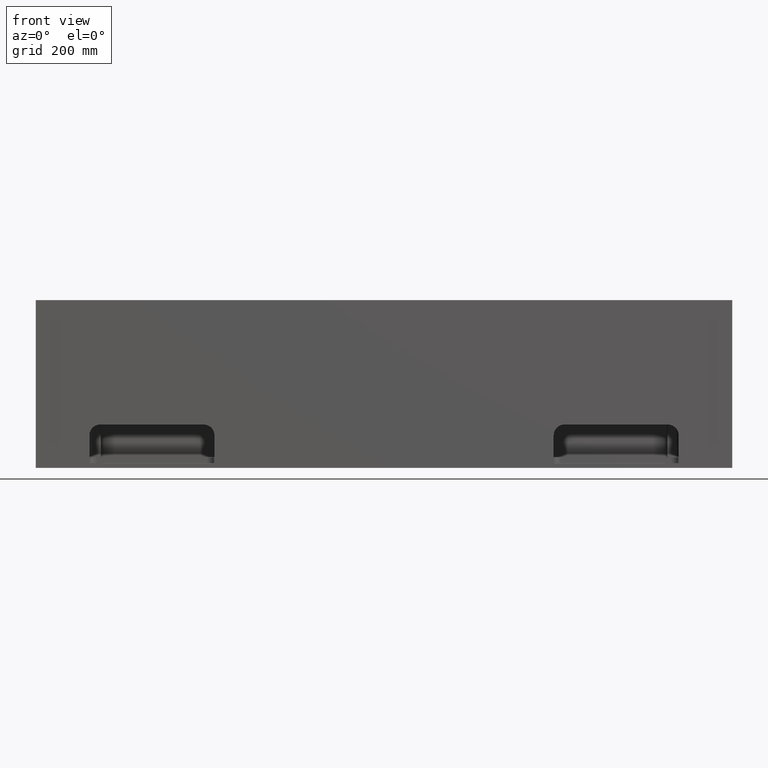
[diagram: clean part render]
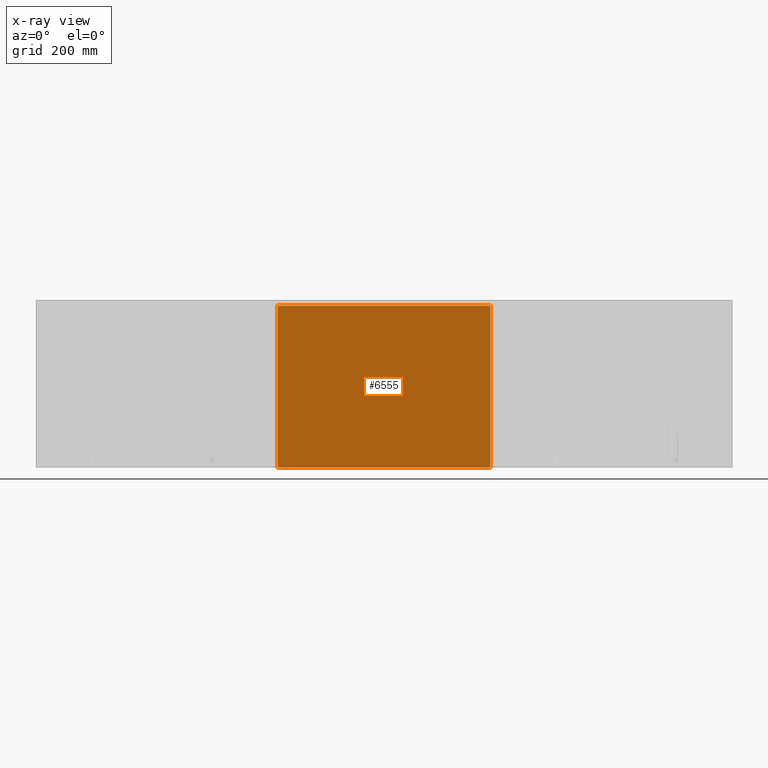
[diagram: x-ray — body ghosted, one internal face saturated and labeled with its STEP entity id]
A machine part, front view, then the same camera in x-ray: the body is ghosted and one INTERNAL B-rep face — a face not visible from any outside direction — is saturated and labeled: STEP entity #6555.
In plain terms, the highlighted planar face has unit normal (0, -1, 0).
Its self-contained STEP definition (entity closure, byte-faithful):
#1891 = EDGE_CURVE ( 'NONE', #34370, #22526, #28741, .T. ) ;
#4047 = CARTESIAN_POINT ( 'NONE',  ( 1273.000000000000227, 292.0000000000000000, -16.00000000000001421 ) ) ;
#4700 = EDGE_CURVE ( 'NONE', #17071, #23354, #8089, .T. ) ;
#5017 = CARTESIAN_POINT ( 'NONE',  ( 0.0000000000000000000, 292.0000000000000000, 0.0000000000000000000 ) ) ;
#5832 = ORIENTED_EDGE ( 'NONE', *, *, #18878, .T. ) ;
#6544 = LINE ( 'NONE', #17543, #22820 ) ;
#6555 = ADVANCED_FACE ( 'NONE', ( #18742 ), #29696, .F. ) ;
#6665 = AXIS2_PLACEMENT_3D ( 'NONE', #5017, #16034, #27013 ) ;
#7788 = CARTESIAN_POINT ( 'NONE',  ( 676.9999999999997726, 292.0000000000000000, -16.00000000000001421 ) ) ;
#8089 = LINE ( 'NONE', #19087, #24285 ) ;
#9109 = CARTESIAN_POINT ( 'NONE',  ( 1273.000000000000227, 292.0000000000000000, -470.0000000000000568 ) ) ;
#9191 = CARTESIAN_POINT ( 'NONE',  ( 1273.000000000000227, 292.0000000000000000, -470.0000000000000568 ) ) ;
#11038 = EDGE_LOOP ( 'NONE', ( #5832, #19500, #13556, #15899 ) ) ;
#11724 = CARTESIAN_POINT ( 'NONE',  ( 1273.000000000000227, 292.0000000000000000, -16.00000000000001421 ) ) ;
#13556 = ORIENTED_EDGE ( 'NONE', *, *, #31324, .T. ) ;
#15070 = DIRECTION ( 'NONE',  ( 1.000000000000000000, -0.0000000000000000000, -0.0000000000000000000 ) ) ;
#15899 = ORIENTED_EDGE ( 'NONE', *, *, #1891, .T. ) ;
#16034 = DIRECTION ( 'NONE',  ( 0.0000000000000000000, -1.000000000000000000, 0.0000000000000000000 ) ) ;
#17071 = VERTEX_POINT ( 'NONE', #9191 ) ;
#17543 = CARTESIAN_POINT ( 'NONE',  ( 676.9999999999996589, 292.0000000000000000, -470.0000000000000568 ) ) ;
#18742 = FACE_OUTER_BOUND ( 'NONE', #11038, .T. ) ;
#18878 = EDGE_CURVE ( 'NONE', #22526, #17071, #33687, .T. ) ;
#19087 = CARTESIAN_POINT ( 'NONE',  ( 1273.000000000000227, 292.0000000000000000, -470.0000000000000568 ) ) ;
#19500 = ORIENTED_EDGE ( 'NONE', *, *, #4700, .T. ) ;
#20100 = DIRECTION ( 'NONE',  ( -0.0000000000000000000, -0.0000000000000000000, -1.000000000000000000 ) ) ;
#22526 = VERTEX_POINT ( 'NONE', #11724 ) ;
#22820 = VECTOR ( 'NONE', #28518, 1000.000000000000000 ) ;
#23323 = CARTESIAN_POINT ( 'NONE',  ( 676.9999999999996589, 292.0000000000000000, -470.0000000000000568 ) ) ;
#23354 = VERTEX_POINT ( 'NONE', #23323 ) ;
#24285 = VECTOR ( 'NONE', #30039, 1000.000000000000000 ) ;
#24978 = VECTOR ( 'NONE', #15070, 1000.000000000000000 ) ;
#27013 = DIRECTION ( 'NONE',  ( 0.0000000000000000000, -0.0000000000000000000, -1.000000000000000000 ) ) ;
#28518 = DIRECTION ( 'NONE',  ( 2.445425164372591768E-16, 0.0000000000000000000, 1.000000000000000000 ) ) ;
#28741 = LINE ( 'NONE', #4047, #24978 ) ;
#29696 = PLANE ( 'NONE',  #6665 ) ;
#30039 = DIRECTION ( 'NONE',  ( -1.000000000000000000, 0.0000000000000000000, 0.0000000000000000000 ) ) ;
#31324 = EDGE_CURVE ( 'NONE', #23354, #34370, #6544, .T. ) ;
#31560 = VECTOR ( 'NONE', #20100, 1000.000000000000000 ) ;
#33687 = LINE ( 'NONE', #9109, #31560 ) ;
#34370 = VERTEX_POINT ( 'NONE', #7788 ) ;